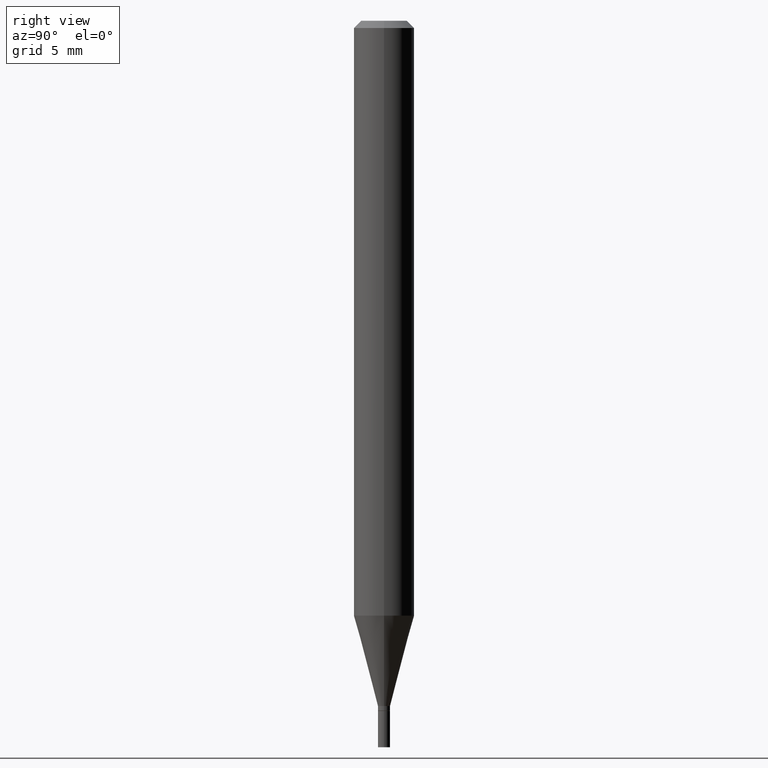
[diagram: clean part render]
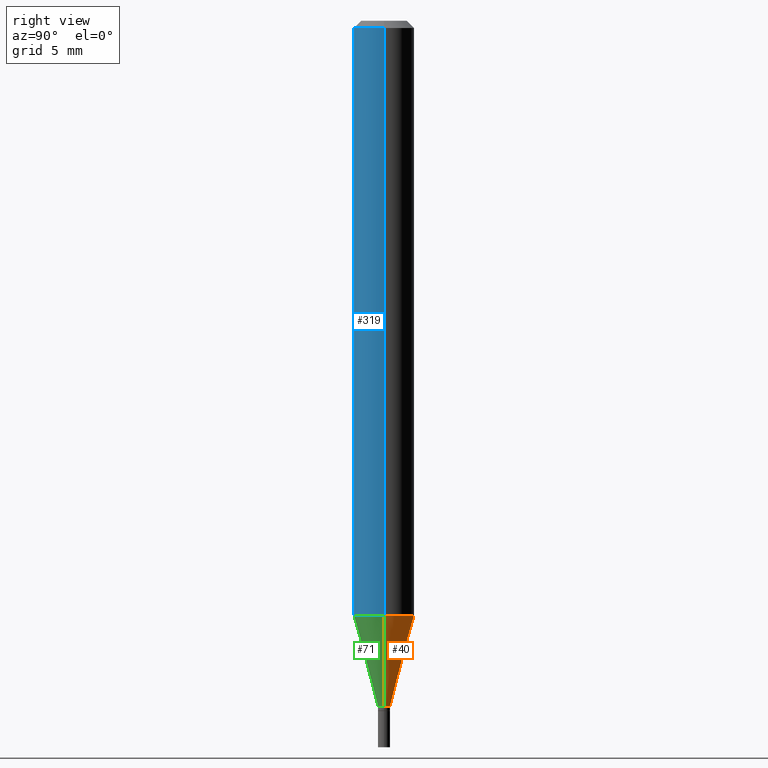
[diagram: same view with three faces highlighted in distinct colors, each labeled with its STEP entity id]
A machine part, right view with three faces highlighted in distinct colors.
Their STEP definitions:

[orange] entity #40 — the highlighted conical surface has half-angle 15 deg.
#8 = CIRCLE ( 'NONE', #134, 0.06250000000000000000 ) ;
#15 = DIRECTION ( 'NONE',  ( 1.000000000000000000, -6.982962677686262766E-15, 0.000000000000000000 ) ) ;
#24 = FACE_OUTER_BOUND ( 'NONE', #96, .T. ) ;
#37 = CARTESIAN_POINT ( 'NONE',  ( 0.01249999999999992437, -5.027733127934128282E-15, -1.415000000000000036 ) ) ;
#40 = ADVANCED_FACE ( 'NONE', ( #24 ), #404, .T. ) ;
#47 = AXIS2_PLACEMENT_3D ( 'NONE', #147, #107, #243 ) ;
#49 = EDGE_CURVE ( 'NONE', #177, #189, #106, .T. ) ;
#53 = ORIENTED_EDGE ( 'NONE', *, *, #49, .T. ) ;
#63 = VECTOR ( 'NONE', #461, 39.37007874015748143 ) ;
#65 = DIRECTION ( 'NONE',  ( -2.445468806185136597E-29, 3.491481338843145583E-15, 1.000000000000000000 ) ) ;
#96 = EDGE_LOOP ( 'NONE', ( #53, #420, #101, #328 ) ) ;
#101 = ORIENTED_EDGE ( 'NONE', *, *, #316, .F. ) ;
#106 = CIRCLE ( 'NONE', #290, 0.01249999999999992437 ) ;
#107 = DIRECTION ( 'NONE',  ( -2.445468806185136597E-29, 3.491481338843145583E-15, 1.000000000000000000 ) ) ;
#110 = VERTEX_POINT ( 'NONE', #223 ) ;
#134 = AXIS2_PLACEMENT_3D ( 'NONE', #229, #308, #15 ) ;
#138 = EDGE_CURVE ( 'NONE', #177, #110, #217, .T. ) ;
#147 = CARTESIAN_POINT ( 'NONE',  ( 3.460338360751968441E-29, -4.940446094463050737E-15, -1.415000000000000036 ) ) ;
#177 = VERTEX_POINT ( 'NONE', #219 ) ;
#189 = VERTEX_POINT ( 'NONE', #360 ) ;
#193 = LINE ( 'NONE', #397, #63 ) ;
#196 = EDGE_CURVE ( 'NONE', #189, #447, #193, .T. ) ;
#217 = LINE ( 'NONE', #37, #322 ) ;
#219 = CARTESIAN_POINT ( 'NONE',  ( 0.01249999999999992437, -5.027733127934128282E-15, -1.415000000000000036 ) ) ;
#223 = CARTESIAN_POINT ( 'NONE',  ( 0.06250000000000001388, -4.725361974306381794E-15, -1.228397459621556109 ) ) ;
#229 = CARTESIAN_POINT ( 'NONE',  ( 3.004007669101581496E-29, -4.288926806950990124E-15, -1.228397459621556109 ) ) ;
#243 = DIRECTION ( 'NONE',  ( 1.000000000000000000, -6.982962677686258822E-15, 0.000000000000000000 ) ) ;
#253 = CARTESIAN_POINT ( 'NONE',  ( -0.06250000000000001388, -3.844837597100926719E-15, -1.228397459621556109 ) ) ;
#290 = AXIS2_PLACEMENT_3D ( 'NONE', #318, #65, #355 ) ;
#308 = DIRECTION ( 'NONE',  ( -2.445468806185136597E-29, 3.491481338843145583E-15, 1.000000000000000000 ) ) ;
#316 = EDGE_CURVE ( 'NONE', #110, #447, #8, .T. ) ;
#318 = CARTESIAN_POINT ( 'NONE',  ( 3.460338360751968441E-29, -4.940446094463050737E-15, -1.415000000000000036 ) ) ;
#322 = VECTOR ( 'NONE', #439, 39.37007874015748143 ) ;
#328 = ORIENTED_EDGE ( 'NONE', *, *, #138, .F. ) ;
#355 = DIRECTION ( 'NONE',  ( 1.000000000000000000, -6.982962677686258822E-15, 0.000000000000000000 ) ) ;
#360 = CARTESIAN_POINT ( 'NONE',  ( -0.01249999999999992437, -4.348232924796983019E-15, -1.415000000000000036 ) ) ;
#397 = CARTESIAN_POINT ( 'NONE',  ( -0.01249999999999992437, -4.851628252493038529E-15, -1.415000000000000036 ) ) ;
#404 = CONICAL_SURFACE ( 'NONE', #47, 0.01249999999999992437, 0.2617993877991497964 ) ;
#420 = ORIENTED_EDGE ( 'NONE', *, *, #196, .T. ) ;
#439 = DIRECTION ( 'NONE',  ( 0.2588190451025211281, 1.565188264969623940E-15, 0.9659258262890682012 ) ) ;
#447 = VERTEX_POINT ( 'NONE', #253 ) ;
#461 = DIRECTION ( 'NONE',  ( -0.2588190451025211281, 5.211531920934548675E-15, 0.9659258262890682012 ) ) ;

[blue] entity #319 — the highlighted cylindrical surface (edge-blend (fillet) strip) has radius 1.5875 mm, axis along (-0, 0, 1).
#3 = CIRCLE ( 'NONE', #388, 0.06250000000000000000 ) ;
#6 = CARTESIAN_POINT ( 'NONE',  ( 0.000000000000000000, 0.000000000000000000, 0.000000000000000000 ) ) ;
#9 = CYLINDRICAL_SURFACE ( 'NONE', #191, 0.06250000000000000000 ) ;
#12 = EDGE_CURVE ( 'NONE', #447, #336, #194, .T. ) ;
#20 = CIRCLE ( 'NONE', #416, 0.06250000000000000000 ) ;
#43 = ORIENTED_EDGE ( 'NONE', *, *, #440, .F. ) ;
#48 = DIRECTION ( 'NONE',  ( 1.000000000000000000, -6.982962677686262766E-15, 0.000000000000000000 ) ) ;
#51 = DIRECTION ( 'NONE',  ( -2.445468806185136597E-29, 3.491481338843145583E-15, 1.000000000000000000 ) ) ;
#92 = VECTOR ( 'NONE', #124, 39.37007874015748143 ) ;
#93 = CARTESIAN_POINT ( 'NONE',  ( 3.668203209277705088E-31, -5.237222008264718399E-17, -0.01499999999999999944 ) ) ;
#110 = VERTEX_POINT ( 'NONE', #223 ) ;
#111 = DIRECTION ( 'NONE',  ( 1.000000000000000000, -6.982962677686266711E-15, 0.000000000000000000 ) ) ;
#124 = DIRECTION ( 'NONE',  ( -2.445468806185136877E-29, 3.491481338843145188E-15, 1.000000000000000000 ) ) ;
#131 = DIRECTION ( 'NONE',  ( -2.445468806185136877E-29, 3.491481338843145188E-15, 1.000000000000000000 ) ) ;
#167 = LINE ( 'NONE', #305, #372 ) ;
#191 = AXIS2_PLACEMENT_3D ( 'NONE', #6, #199, #234 ) ;
#194 = LINE ( 'NONE', #335, #92 ) ;
#199 = DIRECTION ( 'NONE',  ( -2.445468806185136597E-29, 3.491481338843145583E-15, 1.000000000000000000 ) ) ;
#212 = EDGE_LOOP ( 'NONE', ( #276, #445, #292, #43 ) ) ;
#223 = CARTESIAN_POINT ( 'NONE',  ( 0.06250000000000001388, -4.725361974306381794E-15, -1.228397459621556109 ) ) ;
#234 = DIRECTION ( 'NONE',  ( 1.000000000000000000, -6.982962677686266711E-15, 4.876176775795935793E-29 ) ) ;
#251 = VERTEX_POINT ( 'NONE', #400 ) ;
#253 = CARTESIAN_POINT ( 'NONE',  ( -0.06250000000000001388, -3.844837597100926719E-15, -1.228397459621556109 ) ) ;
#276 = ORIENTED_EDGE ( 'NONE', *, *, #12, .F. ) ;
#292 = ORIENTED_EDGE ( 'NONE', *, *, #428, .T. ) ;
#305 = CARTESIAN_POINT ( 'NONE',  ( 0.06250000000000000000, -4.364351673553916694E-16, 3.047610484872459871E-30 ) ) ;
#319 = ADVANCED_FACE ( 'NONE', ( #449 ), #9, .T. ) ;
#335 = CARTESIAN_POINT ( 'NONE',  ( -0.06250000000000000000, 4.440892098500626162E-16, -3.074334431409316114E-30 ) ) ;
#336 = VERTEX_POINT ( 'NONE', #443 ) ;
#372 = VECTOR ( 'NONE', #131, 39.37007874015748143 ) ;
#388 = AXIS2_PLACEMENT_3D ( 'NONE', #93, #51, #111 ) ;
#399 = EDGE_CURVE ( 'NONE', #447, #110, #20, .T. ) ;
#400 = CARTESIAN_POINT ( 'NONE',  ( 0.06250000000000000000, -4.888073874380388472E-16, -0.01499999999999999944 ) ) ;
#410 = DIRECTION ( 'NONE',  ( -2.445468806185136597E-29, 3.491481338843145583E-15, 1.000000000000000000 ) ) ;
#416 = AXIS2_PLACEMENT_3D ( 'NONE', #446, #410, #48 ) ;
#428 = EDGE_CURVE ( 'NONE', #110, #251, #167, .T. ) ;
#440 = EDGE_CURVE ( 'NONE', #336, #251, #3, .T. ) ;
#443 = CARTESIAN_POINT ( 'NONE',  ( -0.06250000000000000000, -1.726560303666755986E-15, -0.01499999999999999944 ) ) ;
#445 = ORIENTED_EDGE ( 'NONE', *, *, #399, .T. ) ;
#446 = CARTESIAN_POINT ( 'NONE',  ( 3.004007669101581496E-29, -4.288926806950990124E-15, -1.228397459621556109 ) ) ;
#447 = VERTEX_POINT ( 'NONE', #253 ) ;
#449 = FACE_OUTER_BOUND ( 'NONE', #212, .T. ) ;

[green] entity #71 — the highlighted conical surface has half-angle 15 deg.
#17 = CIRCLE ( 'NONE', #150, 0.01249999999999992437 ) ;
#20 = CIRCLE ( 'NONE', #416, 0.06250000000000000000 ) ;
#37 = CARTESIAN_POINT ( 'NONE',  ( 0.01249999999999992437, -5.027733127934128282E-15, -1.415000000000000036 ) ) ;
#48 = DIRECTION ( 'NONE',  ( 1.000000000000000000, -6.982962677686262766E-15, 0.000000000000000000 ) ) ;
#63 = VECTOR ( 'NONE', #461, 39.37007874015748143 ) ;
#71 = ADVANCED_FACE ( 'NONE', ( #277 ), #433, .T. ) ;
#78 = ORIENTED_EDGE ( 'NONE', *, *, #399, .F. ) ;
#110 = VERTEX_POINT ( 'NONE', #223 ) ;
#115 = ORIENTED_EDGE ( 'NONE', *, *, #180, .T. ) ;
#122 = EDGE_LOOP ( 'NONE', ( #195, #115, #438, #78 ) ) ;
#125 = AXIS2_PLACEMENT_3D ( 'NONE', #247, #391, #181 ) ;
#138 = EDGE_CURVE ( 'NONE', #177, #110, #217, .T. ) ;
#150 = AXIS2_PLACEMENT_3D ( 'NONE', #435, #357, #437 ) ;
#177 = VERTEX_POINT ( 'NONE', #219 ) ;
#180 = EDGE_CURVE ( 'NONE', #189, #177, #17, .T. ) ;
#181 = DIRECTION ( 'NONE',  ( 1.000000000000000000, -6.982962677686258822E-15, 0.000000000000000000 ) ) ;
#189 = VERTEX_POINT ( 'NONE', #360 ) ;
#193 = LINE ( 'NONE', #397, #63 ) ;
#195 = ORIENTED_EDGE ( 'NONE', *, *, #196, .F. ) ;
#196 = EDGE_CURVE ( 'NONE', #189, #447, #193, .T. ) ;
#217 = LINE ( 'NONE', #37, #322 ) ;
#219 = CARTESIAN_POINT ( 'NONE',  ( 0.01249999999999992437, -5.027733127934128282E-15, -1.415000000000000036 ) ) ;
#223 = CARTESIAN_POINT ( 'NONE',  ( 0.06250000000000001388, -4.725361974306381794E-15, -1.228397459621556109 ) ) ;
#247 = CARTESIAN_POINT ( 'NONE',  ( 3.460338360751968441E-29, -4.940446094463050737E-15, -1.415000000000000036 ) ) ;
#253 = CARTESIAN_POINT ( 'NONE',  ( -0.06250000000000001388, -3.844837597100926719E-15, -1.228397459621556109 ) ) ;
#277 = FACE_OUTER_BOUND ( 'NONE', #122, .T. ) ;
#322 = VECTOR ( 'NONE', #439, 39.37007874015748143 ) ;
#357 = DIRECTION ( 'NONE',  ( -2.445468806185136597E-29, 3.491481338843145583E-15, 1.000000000000000000 ) ) ;
#360 = CARTESIAN_POINT ( 'NONE',  ( -0.01249999999999992437, -4.348232924796983019E-15, -1.415000000000000036 ) ) ;
#391 = DIRECTION ( 'NONE',  ( -2.445468806185136597E-29, 3.491481338843145583E-15, 1.000000000000000000 ) ) ;
#397 = CARTESIAN_POINT ( 'NONE',  ( -0.01249999999999992437, -4.851628252493038529E-15, -1.415000000000000036 ) ) ;
#399 = EDGE_CURVE ( 'NONE', #447, #110, #20, .T. ) ;
#410 = DIRECTION ( 'NONE',  ( -2.445468806185136597E-29, 3.491481338843145583E-15, 1.000000000000000000 ) ) ;
#416 = AXIS2_PLACEMENT_3D ( 'NONE', #446, #410, #48 ) ;
#433 = CONICAL_SURFACE ( 'NONE', #125, 0.01249999999999992437, 0.2617993877991497964 ) ;
#435 = CARTESIAN_POINT ( 'NONE',  ( 3.460338360751968441E-29, -4.940446094463050737E-15, -1.415000000000000036 ) ) ;
#437 = DIRECTION ( 'NONE',  ( 1.000000000000000000, -6.982962677686258822E-15, 0.000000000000000000 ) ) ;
#438 = ORIENTED_EDGE ( 'NONE', *, *, #138, .T. ) ;
#439 = DIRECTION ( 'NONE',  ( 0.2588190451025211281, 1.565188264969623940E-15, 0.9659258262890682012 ) ) ;
#446 = CARTESIAN_POINT ( 'NONE',  ( 3.004007669101581496E-29, -4.288926806950990124E-15, -1.228397459621556109 ) ) ;
#447 = VERTEX_POINT ( 'NONE', #253 ) ;
#461 = DIRECTION ( 'NONE',  ( -0.2588190451025211281, 5.211531920934548675E-15, 0.9659258262890682012 ) ) ;